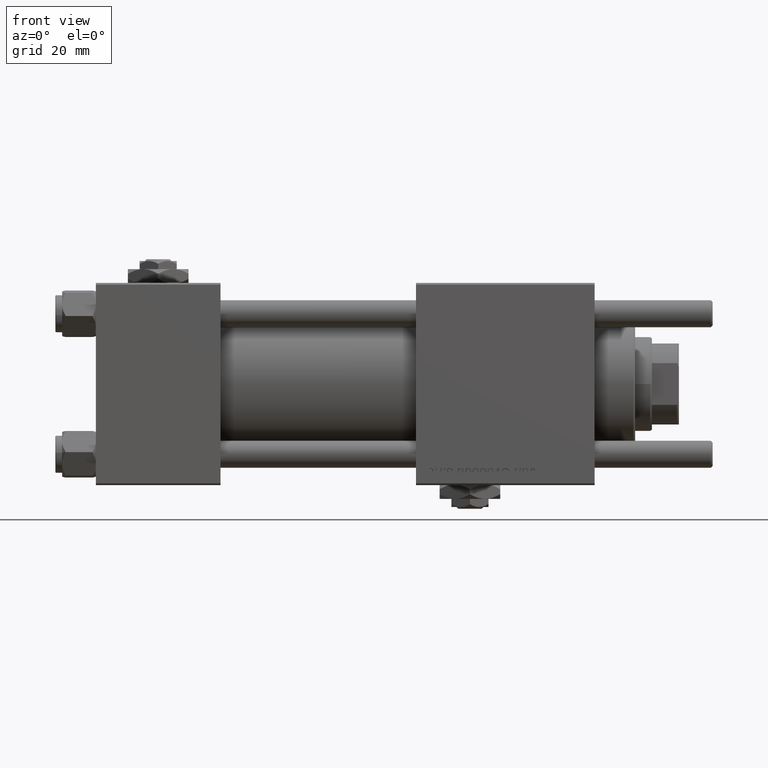
[diagram: clean part render]
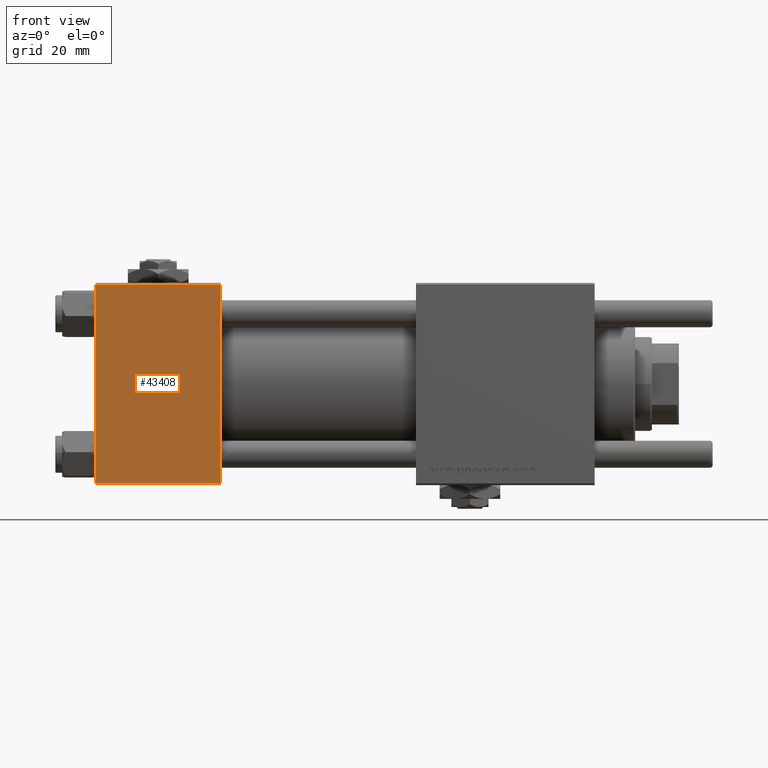
[diagram: same view with one face highlighted and labeled with its STEP entity id]
A machine part, front view. The second image highlights one B-rep face of the part: STEP entity #43408.
In plain terms, the highlighted planar face has unit normal (0, 1, 0).
Its self-contained STEP definition (entity closure, byte-faithful):
#1580 = LINE ( 'NONE', #51607, #52080 ) ;
#2810 = FACE_OUTER_BOUND ( 'NONE', #44089, .T. ) ;
#2933 = CARTESIAN_POINT ( 'NONE',  ( 0.000000000000000000, -30.00000000000000000, 29.49999999999999289 ) ) ;
#4635 = VERTEX_POINT ( 'NONE', #17951 ) ;
#11828 = CARTESIAN_POINT ( 'NONE',  ( 37.00000000000000000, -30.00000000000000000, 29.49999999999999289 ) ) ;
#15198 = ORIENTED_EDGE ( 'NONE', *, *, #45507, .T. ) ;
#16510 = CARTESIAN_POINT ( 'NONE',  ( 37.00000000000000000, -30.00000000000000000, -29.50000000000001776 ) ) ;
#17951 = CARTESIAN_POINT ( 'NONE',  ( 37.00000000000000000, -30.00000000000000000, 29.49999999999999289 ) ) ;
#17986 = DIRECTION ( 'NONE',  ( 0.000000000000000000, 0.000000000000000000, -1.000000000000000000 ) ) ;
#18589 = CARTESIAN_POINT ( 'NONE',  ( 0.000000000000000000, -30.00000000000000000, 29.99999999999999289 ) ) ;
#19956 = ORIENTED_EDGE ( 'NONE', *, *, #39403, .T. ) ;
#20690 = CARTESIAN_POINT ( 'NONE',  ( 37.00000000000000000, -30.00000000000000000, 29.99999999999999289 ) ) ;
#21056 = VERTEX_POINT ( 'NONE', #2933 ) ;
#23619 = LINE ( 'NONE', #58761, #44438 ) ;
#23814 = VECTOR ( 'NONE', #41489, 1000.000000000000000 ) ;
#29387 = LINE ( 'NONE', #11828, #58136 ) ;
#31177 = EDGE_CURVE ( 'NONE', #4635, #42617, #23619, .T. ) ;
#31263 = EDGE_CURVE ( 'NONE', #37553, #42617, #1580, .T. ) ;
#32261 = LINE ( 'NONE', #18589, #23814 ) ;
#33800 = PLANE ( 'NONE',  #54247 ) ;
#34086 = DIRECTION ( 'NONE',  ( 0.000000000000000000, -0.000000000000000000, 1.000000000000000000 ) ) ;
#37553 = VERTEX_POINT ( 'NONE', #56207 ) ;
#39190 = DIRECTION ( 'NONE',  ( -1.000000000000000000, 0.000000000000000000, 0.000000000000000000 ) ) ;
#39403 = EDGE_CURVE ( 'NONE', #21056, #37553, #32261, .T. ) ;
#40469 = ORIENTED_EDGE ( 'NONE', *, *, #31263, .T. ) ;
#41489 = DIRECTION ( 'NONE',  ( 0.000000000000000000, 0.000000000000000000, -1.000000000000000000 ) ) ;
#41916 = DIRECTION ( 'NONE',  ( -0.000000000000000000, 1.000000000000000000, 0.000000000000000000 ) ) ;
#42069 = DIRECTION ( 'NONE',  ( 1.000000000000000000, 0.000000000000000000, 0.000000000000000000 ) ) ;
#42617 = VERTEX_POINT ( 'NONE', #16510 ) ;
#43408 = ADVANCED_FACE ( 'NONE', ( #2810 ), #33800, .F. ) ;
#44089 = EDGE_LOOP ( 'NONE', ( #19956, #40469, #50531, #15198 ) ) ;
#44438 = VECTOR ( 'NONE', #17986, 1000.000000000000000 ) ;
#45507 = EDGE_CURVE ( 'NONE', #4635, #21056, #29387, .T. ) ;
#50531 = ORIENTED_EDGE ( 'NONE', *, *, #31177, .F. ) ;
#51607 = CARTESIAN_POINT ( 'NONE',  ( 37.00000000000000000, -30.00000000000000000, -29.50000000000001776 ) ) ;
#52080 = VECTOR ( 'NONE', #42069, 1000.000000000000000 ) ;
#54247 = AXIS2_PLACEMENT_3D ( 'NONE', #20690, #41916, #34086 ) ;
#56207 = CARTESIAN_POINT ( 'NONE',  ( 0.000000000000000000, -30.00000000000000000, -29.50000000000001776 ) ) ;
#58136 = VECTOR ( 'NONE', #39190, 1000.000000000000000 ) ;
#58761 = CARTESIAN_POINT ( 'NONE',  ( 37.00000000000000000, -30.00000000000000000, 29.99999999999999289 ) ) ;